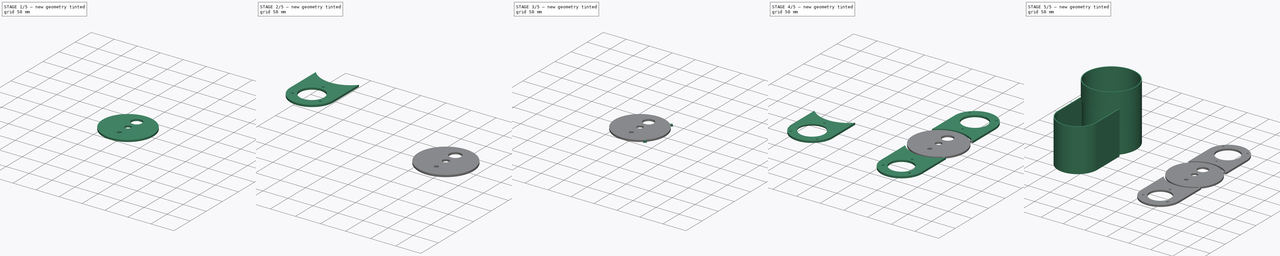
[diagram: build sequence overview — one tinted view per stage of 5, left to right]
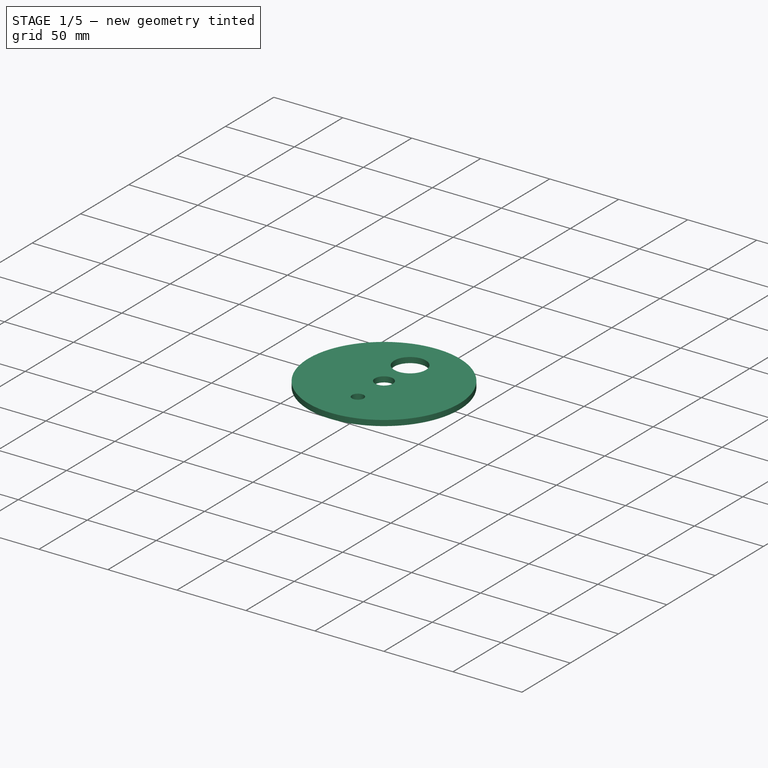
[diagram: stage 1 of 5 — iso view after this stage's code; geometry added in this stage tinted green]
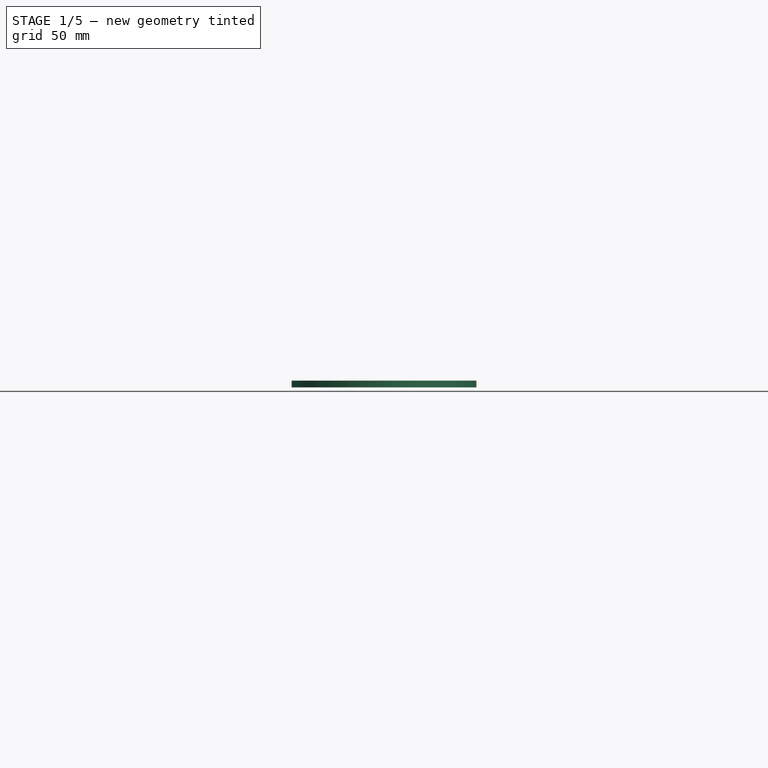
[diagram: stage 1 of 5 — front view after this stage's code; geometry added in this stage tinted green]
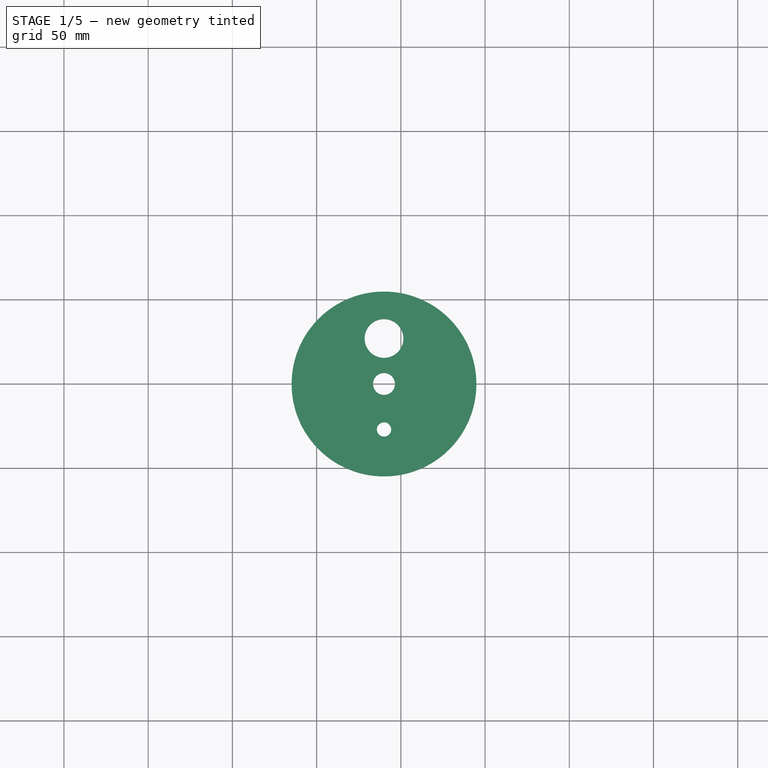
[diagram: stage 1 of 5 — top view after this stage's code; geometry added in this stage tinted green]
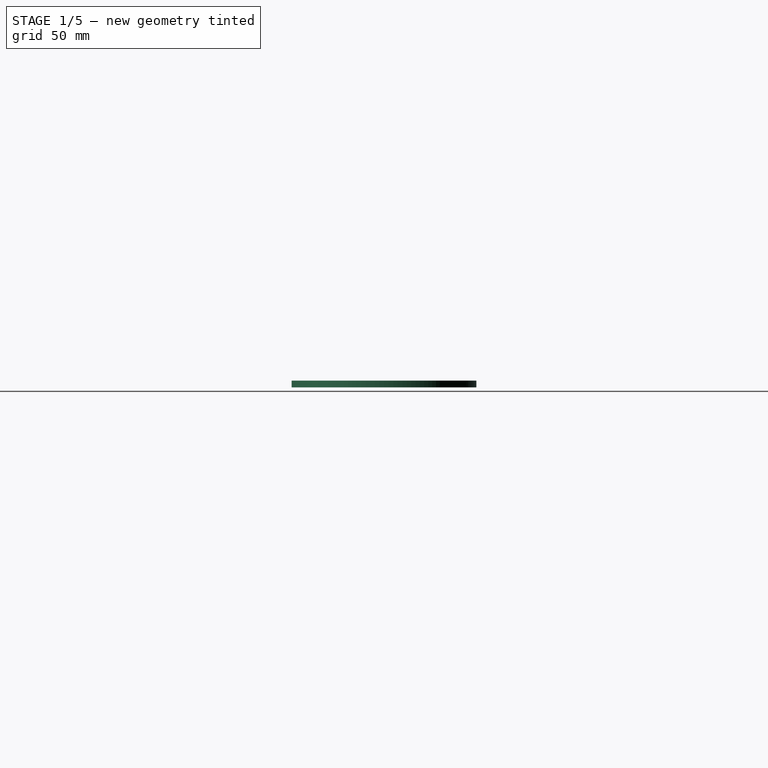
[diagram: stage 1 of 5 — right view after this stage's code; geometry added in this stage tinted green]
FCSTD DOCUMENT  (FreeCAD 0.21R33771 (Git))
Label: boiler
License: All rights reserved
LicenseURL: https://en.wikipedia.org/wiki/All_rights_reserved
objects: Part::Extrusion×8, Sketcher::SketchObject×6, Part::FeaturePython×3, Part::MultiFuse×2, Part::Chamfer×1, Part::Cut×1, Part::Fuse×1, TechDraw::DrawSVGTemplate×1, TechDraw::DrawViewPart×1, TechDraw::DrawPage×1
note: 22 computed .brp shape members not serialized (recipe doc carries the construction recipe); baked Part::Feature solids carry a one-line shape summary decoded from their .brp

FEATURE [Part::FeaturePython] Tube  label="TubeBig"  # WARN: FeaturePython — macro-defined, semantics opaque (R4)
  AttacherType = Attacher::AttachEngine3D
  Height = 130
  InnerRadius = 55.15
  OuterRadius = 57.15
  Placement = pos=(0,0,20) rot=(0,0,1;0rad)
  expr: .Placement.Base.z = <<BaseBig>>.Height
  expr: Height = 150 mm - <<BaseBig>>.Height
  expr: InnerRadius = OuterRadius - 2 mm
FEATURE [Part::FeaturePython] Tube002  label="BaseBig"  # WARN: FeaturePython — macro-defined, semantics opaque (R4)
  AttacherType = Attacher::AttachEngine3D
  Height = 20
  InnerRadius = 56
  OuterRadius = 60
  expr: OuterRadius = InnerRadius + 4 mm
FEATURE [Part::Extrusion] Extrude010  label="Cap001"
  Base = -> Sketch003
  Dir = (0,0,1)
  DirMode = 2
  FaceMakerClass = Part::FaceMakerBullseye
  LengthFwd = 4
  LengthRev = 0
  Placement = pos=(190,0,-150) rot=(0,0,1;0rad)
  Solid = true
  Symmetric = false
  expr: .Placement.Base.z = -<<BaseBig>>.Height - <<TubeBig>>.Height
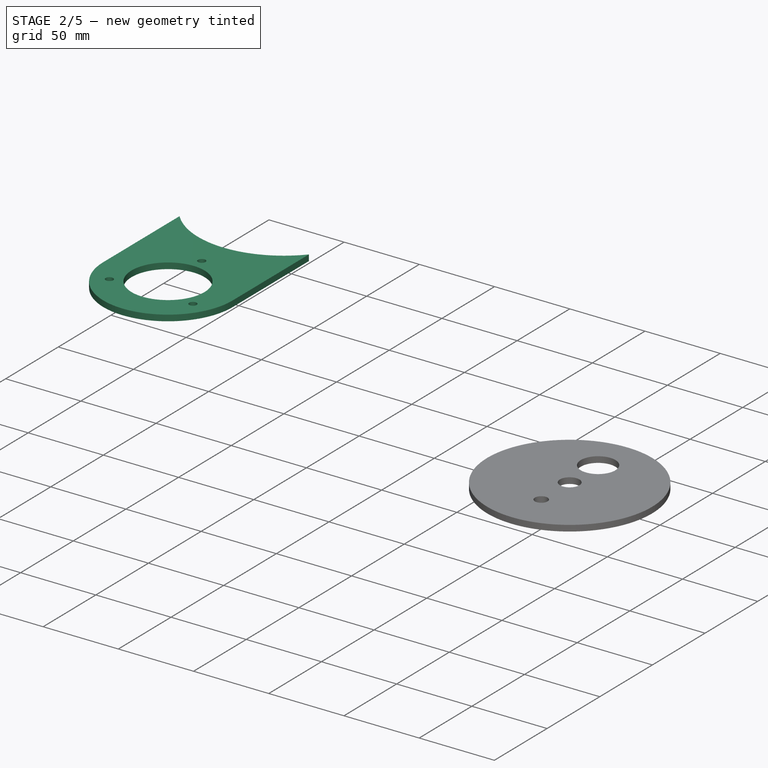
[diagram: stage 2 of 5 — iso view after this stage's code; geometry added in this stage tinted green]
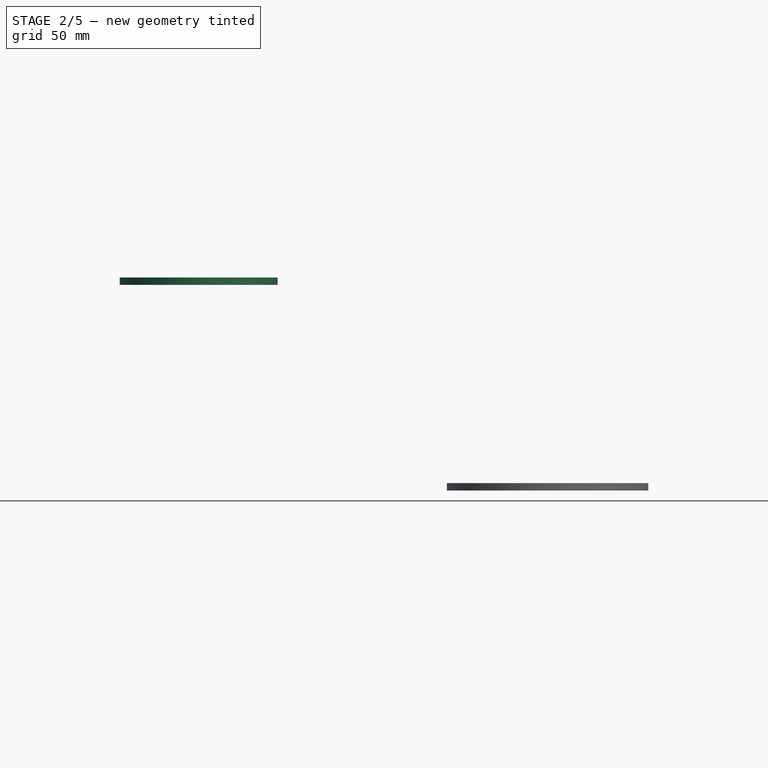
[diagram: stage 2 of 5 — front view after this stage's code; geometry added in this stage tinted green]
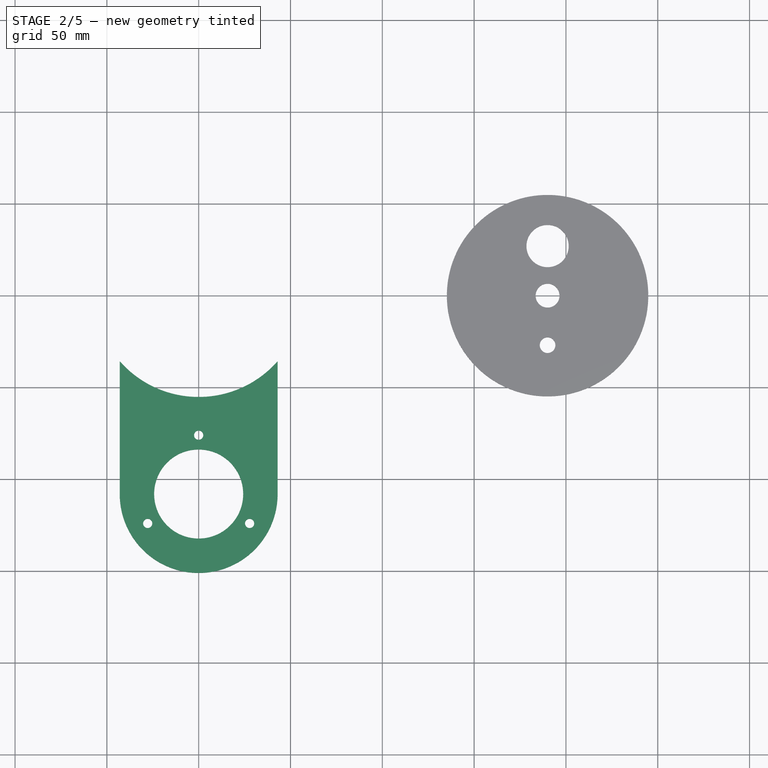
[diagram: stage 2 of 5 — top view after this stage's code; geometry added in this stage tinted green]
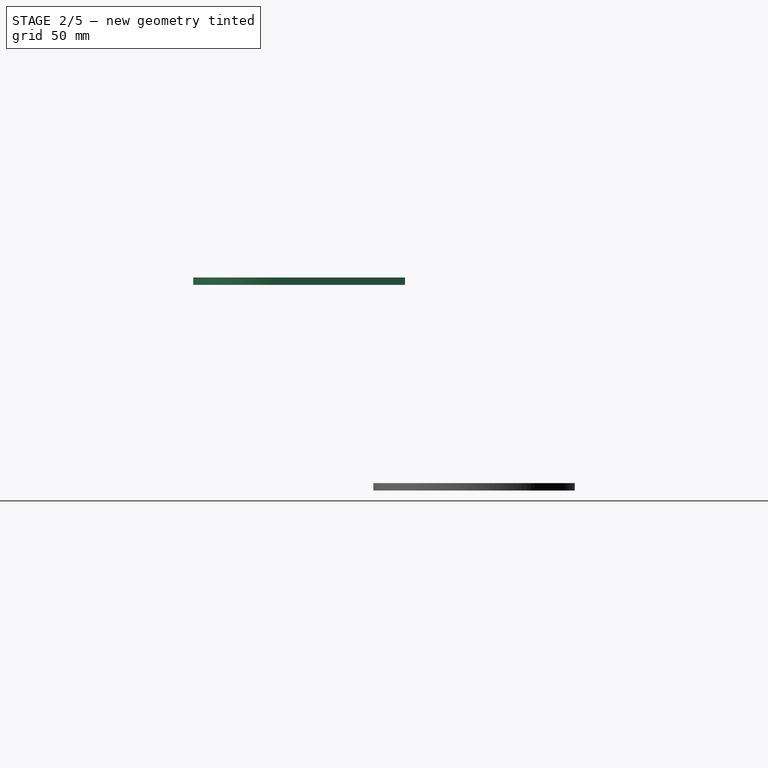
[diagram: stage 2 of 5 — right view after this stage's code; geometry added in this stage tinted green]
FEATURE [Sketcher::SketchObject] Sketch  label="ExtruderTopSketch"
  ExternalGeometry = -> [Tube]
  FullyConstrained = true
  sketch-geometry (11):
    g0: ArcOfCircle CenterX=0 CenterY=0 CenterZ=0 NormalX=0 NormalY=0 NormalZ=1 AngleXU=0 Radius=57.15 StartAngle=3.86068 EndAngle=5.5641
    g1: LineSegment StartX=-43 StartY=-37.6447 StartZ=0 EndX=-43 EndY=-110 EndZ=0
    g2: LineSegment StartX=43 StartY=-37.6447 StartZ=0 EndX=43 EndY=-110 EndZ=0
    g3: ArcOfCircle CenterX=0 CenterY=-110 CenterZ=0 NormalX=0 NormalY=0 NormalZ=1 AngleXU=0 Radius=43 StartAngle=3.14159 EndAngle=6.28319
    g4: Circle CenterX=0 CenterY=-110 CenterZ=0 NormalX=0 NormalY=0 NormalZ=1 AngleXU=0 Radius=24.25
    g5: Circle CenterX=0 CenterY=-77.9571 CenterZ=0 NormalX=0 NormalY=0 NormalZ=1 AngleXU=0 Radius=2.5
    g6: Circle CenterX=-27.75 CenterY=-126.021 CenterZ=0 NormalX=0 NormalY=0 NormalZ=1 AngleXU=0 Radius=2.5
    g7: Circle CenterX=27.75 CenterY=-126.021 CenterZ=0 NormalX=0 NormalY=0 NormalZ=1 AngleXU=0 Radius=2.5
    g8: LineSegment StartX=0 StartY=-77.9571 StartZ=0 EndX=0 EndY=-110 EndZ=0
    g9: LineSegment StartX=0 StartY=-110 StartZ=0 EndX=-27.75 EndY=-126.021 EndZ=0
    g10: LineSegment StartX=0 StartY=-110 StartZ=0 EndX=27.75 EndY=-126.021 EndZ=0
  constraints (27):
    c: Coincident(g0,g-3)
    c: PointOnObject(g0,g-3)
    c: Coincident(g1,g0)
    c: Vertical(g1)
    c: Coincident(g2,g0)
    c: Vertical(g2)
    c: PointOnObject(g3,g-2)
    c: Tangent(g3,g2) = 1.5708
    c: Tangent(g3,g1) = -1.5708
    c: Coincident(g4,g3)
    c: DistanceY(g3,g0) = 110  'Distance'
    c: Equal(g5,g6)
    c: Equal(g5,g7)
    c: Diameter(g5) = 5
    c: Coincident(g8,g5)
    c: Coincident(g8,g3)
    c: Coincident(g9,g3)
    c: Coincident(g9,g6)
    c: Coincident(g10,g3)
    c: Coincident(g10,g7)
    c: Equal(g8,g9)
    c: Angle(g10,g8) = 2.0944
    c: PointOnObject(g5,g-2)
    c: DistanceX(g1,g2) = 86  'Width'
    c: Diameter(g4) = 48.5
    c: Distance(g5,g7) = 55.5
    c: Symmetric(g7,g6,g-2)
FEATURE [Part::Extrusion] Extrude  label="ExtruderTop"
  Base = -> Sketch
  Dir = (0,0,1)
  DirMode = 2
  FaceMakerClass = Part::FaceMakerBullseye
  LengthFwd = 4
  LengthRev = 0
  Placement = pos=(0,0,112) rot=(0,0,1;0rad)
  Solid = true
  Symmetric = false
  expr: .Placement.Base.z = <<ExtruderBottom>>.Placement.Base.z - LengthFwd + 100 mm
FEATURE [Sketcher::SketchObject] Sketch001  label="ExtruderBottomSketch"
  FullyConstrained = true
  expr: Constraints[25] = <<BaseBig>>.OuterRadius
  expr: Constraints[7] = Sketch.Constraints.Distance
  expr: Constraints[8] = Sketch.Constraints.Width
  sketch-geometry (11):
    g0: ArcOfCircle CenterX=0 CenterY=0 CenterZ=0 NormalX=0 NormalY=0 NormalZ=1 AngleXU=0 Radius=60 StartAngle=3.91338 EndAngle=5.5114
    g1: LineSegment StartX=-43 StartY=-41.845 StartZ=0 EndX=-43 EndY=-110 EndZ=0
    g2: LineSegment StartX=43 StartY=-41.845 StartZ=0 EndX=43 EndY=-110 EndZ=0
    g3: ArcOfCircle CenterX=0 CenterY=-110 CenterZ=0 NormalX=0 NormalY=0 NormalZ=1 AngleXU=0 Radius=43 StartAngle=3.14159 EndAngle=6.28319
    g4: Circle CenterX=0 CenterY=-110 CenterZ=0 NormalX=0 NormalY=0 NormalZ=1 AngleXU=0 Radius=26
    g5: Circle CenterX=0 CenterY=-72.9425 CenterZ=0 NormalX=0 NormalY=0 NormalZ=1 AngleXU=0 Radius=2.1
    g6: Circle CenterX=27.875 CenterY=-134.418 CenterZ=0 NormalX=0 NormalY=0 NormalZ=1 AngleXU=0 Radius=2.1
    g7: Circle CenterX=-27.875 CenterY=-134.418 CenterZ=0 NormalX=0 NormalY=0 NormalZ=1 AngleXU=0 Radius=2.1
    g8: LineSegment StartX=0 StartY=-110 StartZ=0 EndX=0 EndY=-72.9425 EndZ=0
    g9: LineSegment StartX=0 StartY=-110 StartZ=0 EndX=-27.875 EndY=-134.418 EndZ=0
    g10: LineSegment StartX=0 StartY=-110 StartZ=0 EndX=27.875 EndY=-134.418 EndZ=0
  constraints (27):
    c: Coincident(g1,g0)
    c: Vertical(g1)
    c: Coincident(g2,g0)
    c: Vertical(g2)
    c: PointOnObject(g3,g-2)
    c: Tangent(g3,g2) = 1.5708
    c: Tangent(g3,g1) = -1.5708
    c: DistanceY(g3,g0) = 110
    c: DistanceX(g1,g2) = 86
    c: Coincident(g4,g3)
    c: Diameter(g4) = 52
    c: Equal(g5,g7)
    c: Equal(g7,g6)
    c: Coincident(g8,g3)
    c: Coincident(g8,g5)
    c: Coincident(g9,g3)
    c: Coincident(g9,g7)
    c: Coincident(g10,g3)
    c: Coincident(g10,g6)
    c: Equal(g8,g10)
    c: Diameter(g5) = 4.2
    c: PointOnObject(g5,g-2)
    c: Symmetric(g7,g6,g-2)
    c: DistanceX(g7,g6) = 55.75
    c: Distance(g5,g6) = 67.5
    c: Radius(g0) = 60
    c: Coincident(g0,g-1)
FEATURE [Part::Extrusion] Extrude001  label="ExtruderBottom"
  Base = -> Sketch001
  Dir = (0,0,1)
  DirMode = 2
  FaceMakerClass = Part::FaceMakerBullseye
  LengthFwd = 4
  LengthRev = 0
  Placement = pos=(0,0,16) rot=(0,0,1;0rad)
  Solid = true
  Symmetric = false
  expr: .Placement.Base.z = <<BaseBig>>.Height - LengthFwd
  expr: LengthFwd = <<Cap>>.LengthFwd
FEATURE [Sketcher::SketchObject] Sketch003
  ExternalGeometry = -> [Tube]
  FullyConstrained = true
  MapMode = 5
  Placement = pos=(0,0,150) rot=(0,0,1;0rad)
  Support = -> [Tube]
  expr: Constraints[2] = .Constraints.InnerDiameterBoiler - 0.6 mm
  sketch-geometry (4):
    g0: Circle CenterX=0 CenterY=0 CenterZ=0 NormalX=0 NormalY=0 NormalZ=1 AngleXU=0 Radius=54.85
    g1: Circle CenterX=0 CenterY=27 CenterZ=0 NormalX=0 NormalY=0 NormalZ=1 AngleXU=0 Radius=11.5
    g2: Circle CenterX=0 CenterY=0 CenterZ=0 NormalX=0 NormalY=0 NormalZ=1 AngleXU=0 Radius=6.5
    g3: Circle CenterX=0 CenterY=-27 CenterZ=0 NormalX=0 NormalY=0 NormalZ=1 AngleXU=0 Radius=4.25
  constraints (11):
    c: Coincident(g0,g-1)
    c: Diameter(g-3) = 110.3  'InnerDiameterBoiler'
    c: Diameter(g0) = 109.7
    c: PointOnObject(g1,g-2)
    c: Coincident(g2,g0)
    c: PointOnObject(g3,g-2)
    c: Diameter(g1) = 23
    c: Diameter(g2) = 13
    c: Diameter(g3) = 8.5
    c: DistanceY(g3,g0) = 27
    c: DistanceY(g0,g1) = 27
FEATURE [Part::Extrusion] Extrude002  label="Cap"
  Base = -> Sketch003
  Dir = (0,0,1)
  DirMode = 2
  FaceMakerClass = Part::FaceMakerBullseye
  LengthFwd = 4
  LengthRev = 0
  Placement = pos=(0,0,-3) rot=(0,0,1;0rad)
  Solid = true
  Symmetric = false
  expr: .Placement.Base.z = -LengthFwd + 1 mm
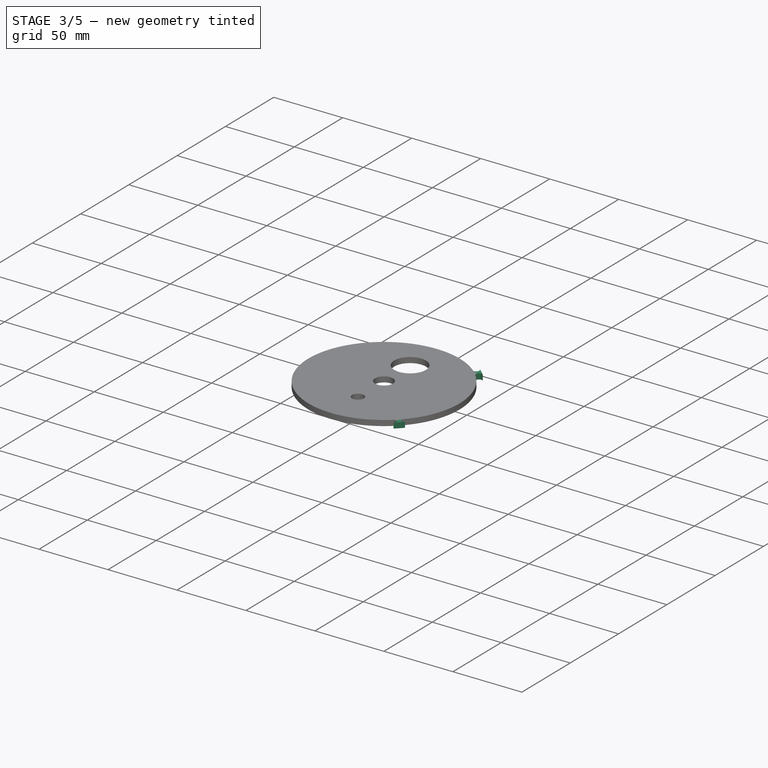
[diagram: stage 3 of 5 — iso view after this stage's code; geometry added in this stage tinted green]
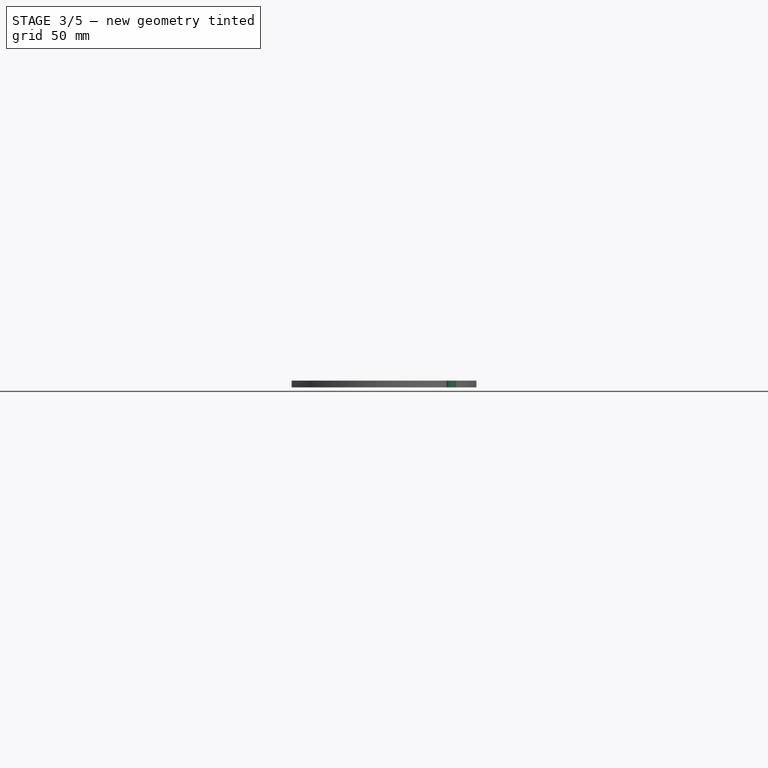
[diagram: stage 3 of 5 — front view after this stage's code; geometry added in this stage tinted green]
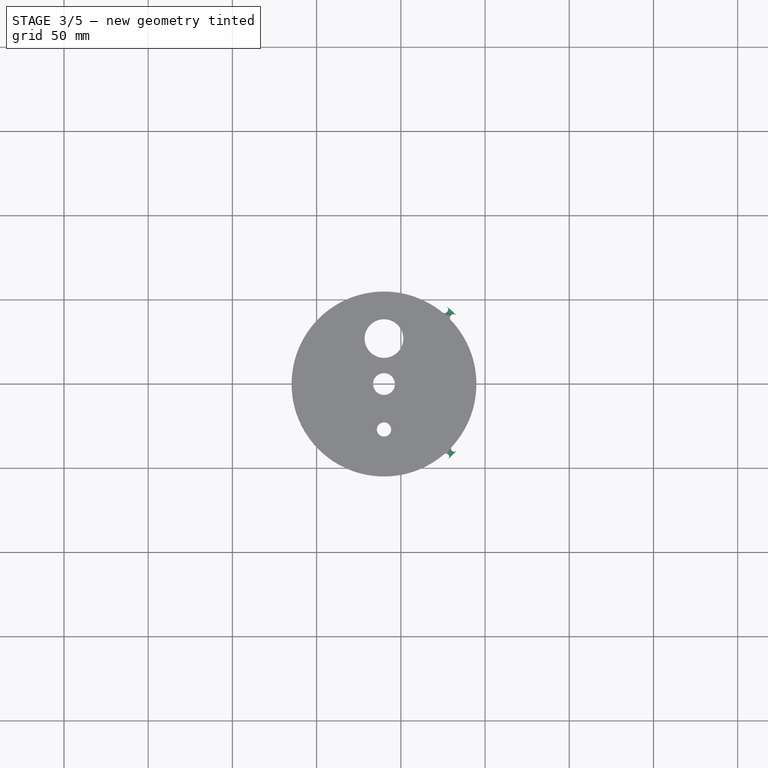
[diagram: stage 3 of 5 — top view after this stage's code; geometry added in this stage tinted green]
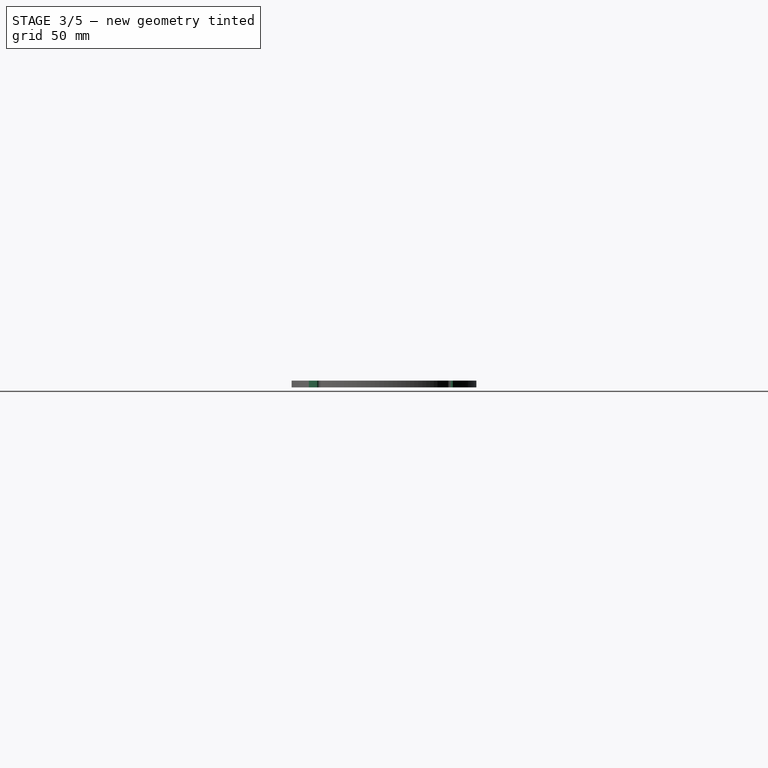
[diagram: stage 3 of 5 — right view after this stage's code; geometry added in this stage tinted green]
FEATURE [Part::Extrusion] Extrude007  label="ExtruderBottom001"
  Base = -> Sketch001
  Dir = (0,0,1)
  DirMode = 2
  FaceMakerClass = Part::FaceMakerBullseye
  LengthFwd = 4
  LengthRev = 0
  Placement = pos=(190,-1,0) rot=(0,0,1;3.14159rad)
  Solid = true
  Symmetric = false
  expr: LengthFwd = <<ExtruderTop>>.LengthFwd
FEATURE [Part::Extrusion] Extrude008  label="ExtruderTop001"
  Base = -> Sketch
  Dir = (0,0,1)
  DirMode = 2
  FaceMakerClass = Part::FaceMakerBullseye
  LengthFwd = 4
  LengthRev = 0
  Placement = pos=(190,-2,0) rot=(0,0,1;0rad)
  Solid = true
  Symmetric = false
  expr: LengthFwd = <<ExtruderTop>>.LengthFwd
FEATURE [Sketcher::SketchObject] Sketch005
  ExternalGeometry = -> [Extrude010,Extrude007,Extrude008]
  FullyConstrained = true
  sketch-geometry (10):
    g0: ArcOfCircle CenterX=231.403 CenterY=39.2907 CenterZ=0 NormalX=0 NormalY=0 NormalZ=1 AngleXU=0 Radius=2.22854 StartAngle=0.771785 EndAngle=3.90082
    g1: ArcOfCircle CenterX=225.932 CenterY=44.2934 CenterZ=0 NormalX=0 NormalY=0 NormalZ=1 AngleXU=0 Radius=2.18498 StartAngle=4.03084 EndAngle=7.18333
    g2: ArcOfCircle CenterX=231.632 CenterY=-38.4467 CenterZ=0 NormalX=0 NormalY=0 NormalZ=1 AngleXU=0 Radius=1.81869 StartAngle=2.39595 EndAngle=5.5641
    g3: ArcOfCircle CenterX=226.845 CenterY=-43.1661 CenterZ=0 NormalX=0 NormalY=0 NormalZ=1 AngleXU=0 Radius=1.90297 StartAngle=5.44246 EndAngle=8.56055
    g4: ArcOfCircle CenterX=190 CenterY=0 CenterZ=0 NormalX=0 NormalY=0 NormalZ=1 AngleXU=0 Radius=54.85 StartAngle=5.41895 EndAngle=5.53754
    g5: ArcOfCircle CenterX=190 CenterY=-2 CenterZ=0 NormalX=0 NormalY=0 NormalZ=1 AngleXU=0 Radius=57.15 StartAngle=5.44246 EndAngle=5.5641
    g6: ArcOfCircle CenterX=190 CenterY=0 CenterZ=0 NormalX=0 NormalY=0 NormalZ=1 AngleXU=0 Radius=54.85 StartAngle=0.759229 EndAngle=0.889251
    g7: ArcOfCircle CenterX=190 CenterY=-1 CenterZ=0 NormalX=0 NormalY=0 NormalZ=1 AngleXU=0 Radius=60 StartAngle=0.771785 EndAngle=0.900148
    g8: LineSegment StartX=227.544 StartY=42.8189 StartZ=0 EndX=229.758 EndY=40.7946 EndZ=0
    g9: LineSegment StartX=230.337 StartY=-39.7237 StartZ=0 EndX=228.2 EndY=-41.83 EndZ=0
  constraints (28):
    c: Coincident(g4,g-3)
    c: PointOnObject(g4,g-3)
    c: Coincident(g5,g-5)
    c: Coincident(g6,g4)
    c: PointOnObject(g6,g-3)
    c: Coincident(g7,g-4)
    c: Coincident(g7,g-4)
    c: Tangent(g0,g7) = -1.5708
    c: Tangent(g0,g6) = 1.5708
    c: Tangent(g1,g6) = 1.5708
    c: Tangent(g1,g7) = -1.5708
    c: Tangent(g2,g5) = -1.5708
    c: Tangent(g2,g4) = 1.5708
    c: Tangent(g3,g4) = 1.5708
    c: Tangent(g3,g5) = -1.5708
    c: Coincident(g2,g-5)
    c: PointOnObject(g8,g1)
    c: PointOnObject(g8,g0)
    c: Perpendicular(g1,g8)
    c: Perpendicular(g0,g8)
    c: Distance(g8) = 3
    c: Distance(g1,g1) = 4.3699
    c: PointOnObject(g9,g2)
    c: PointOnObject(g9,g3)
    c: Perpendicular(g3,g9)
    c: Perpendicular(g2,g9)
    c: Equal(g9,g8)
    c: Distance(g3,g3) = 3.80567
FEATURE [Part::Extrusion] Extrude011
  Base = -> Sketch005
  Dir = (0,0,1)
  DirMode = 2
  FaceMakerClass = Part::FaceMakerBullseye
  LengthFwd = 4
  LengthRev = 0
  Solid = true
  Symmetric = false
  expr: LengthFwd = <<ExtruderTop>>.LengthFwd
FEATURE [Part::MultiFuse] Fusion
  Shapes = -> [Extrude011,Extrude010]
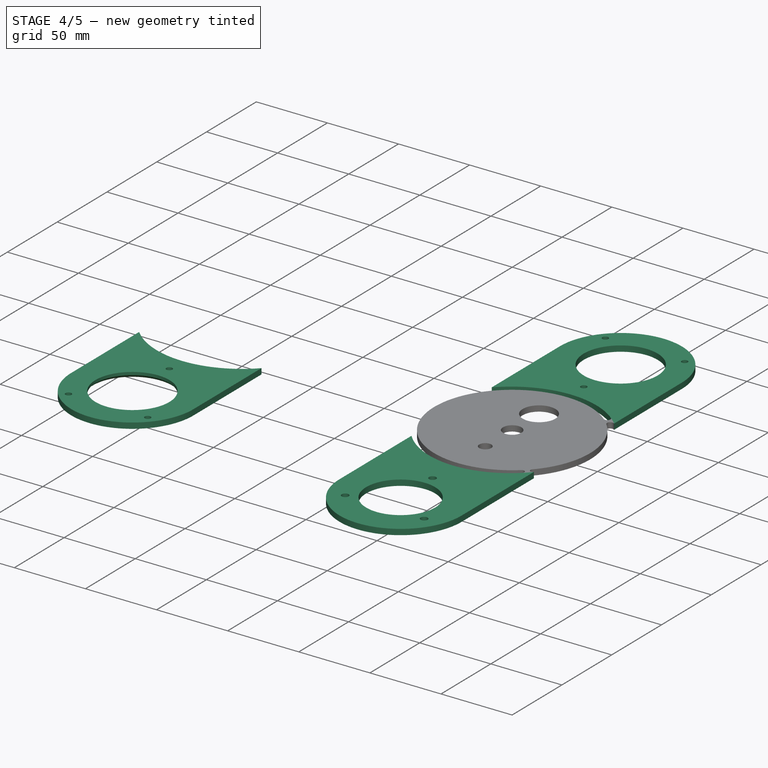
[diagram: stage 4 of 5 — iso view after this stage's code; geometry added in this stage tinted green]
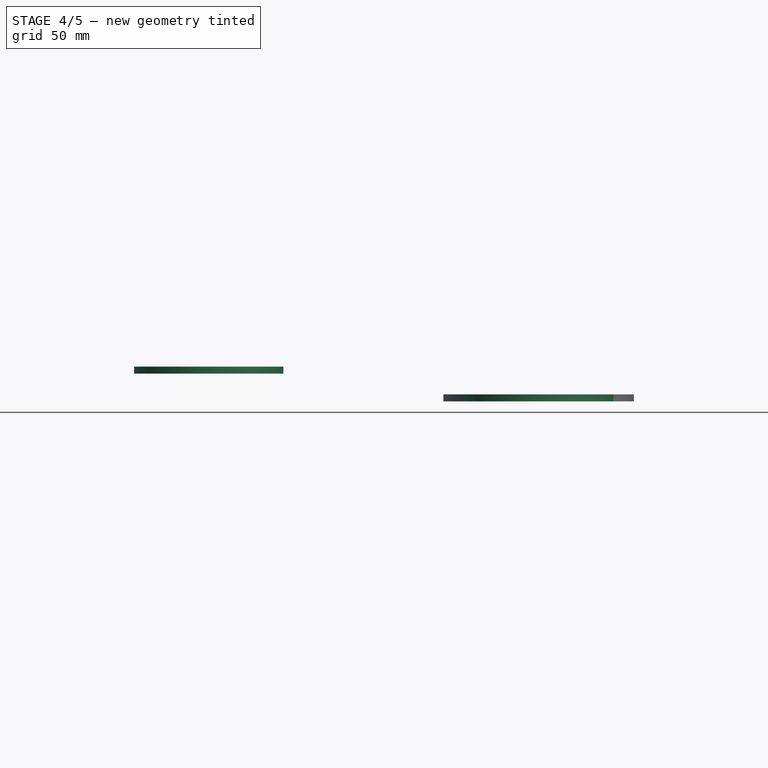
[diagram: stage 4 of 5 — front view after this stage's code; geometry added in this stage tinted green]
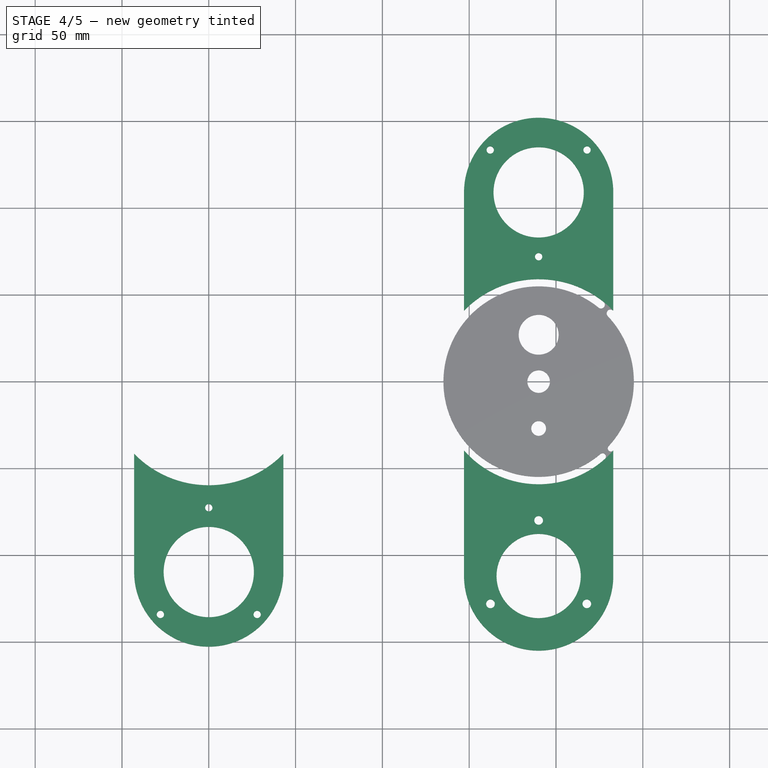
[diagram: stage 4 of 5 — top view after this stage's code; geometry added in this stage tinted green]
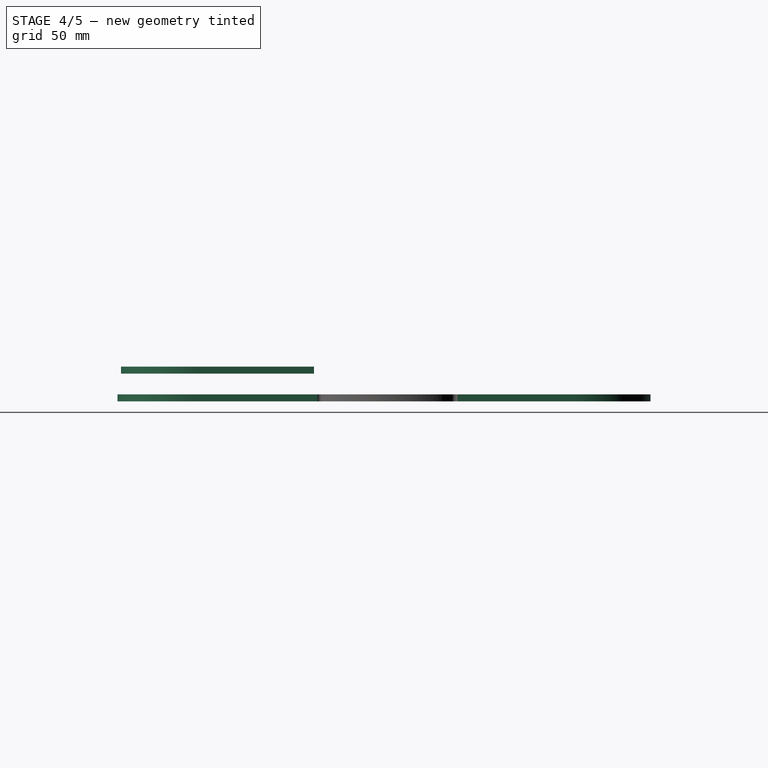
[diagram: stage 4 of 5 — right view after this stage's code; geometry added in this stage tinted green]
FEATURE [Part::Chamfer] Chamfer
  Base = -> Extrude001
  Edges = 1 edges r=2: [Edge14]
FEATURE [Part::MultiFuse] Fusion001
  Shapes = -> [Extrude008,Fusion]
FEATURE [Part::Fuse] Fusion002
  Base = -> Extrude007
  Tool = -> Fusion001
FEATURE [TechDraw::DrawSVGTemplate] Template
  Height = 297
  Orientation = 0
  Template = <path>
  Width = 210
FEATURE [TechDraw::DrawViewPart] View
  CoarseView = false
  Direction = (0,0,1)
  Focus = 100
  HardHidden = false
  IsoCount = 0
  IsoHidden = false
  IsoVisible = false
  LockPosition = false
  Perspective = false
  Rotation = 0
  ScaleType = 0
  ScrubCount = 0
  SeamHidden = false
  SeamVisible = false
  SmoothHidden = false
  SmoothVisible = true
  Source = -> [Fusion002]
  X = 105
  XDirection = (1,0,0)
  Y = 148.5
FEATURE [TechDraw::DrawPage] Page
  KeepUpdated = true
  NextBalloonIndex = 1
  ProjectionType = 0
  Template = -> Template
  Views = -> [View]
note: 1 file-system path scrubbed to <path> (originals preserved in the JSON sidecar)
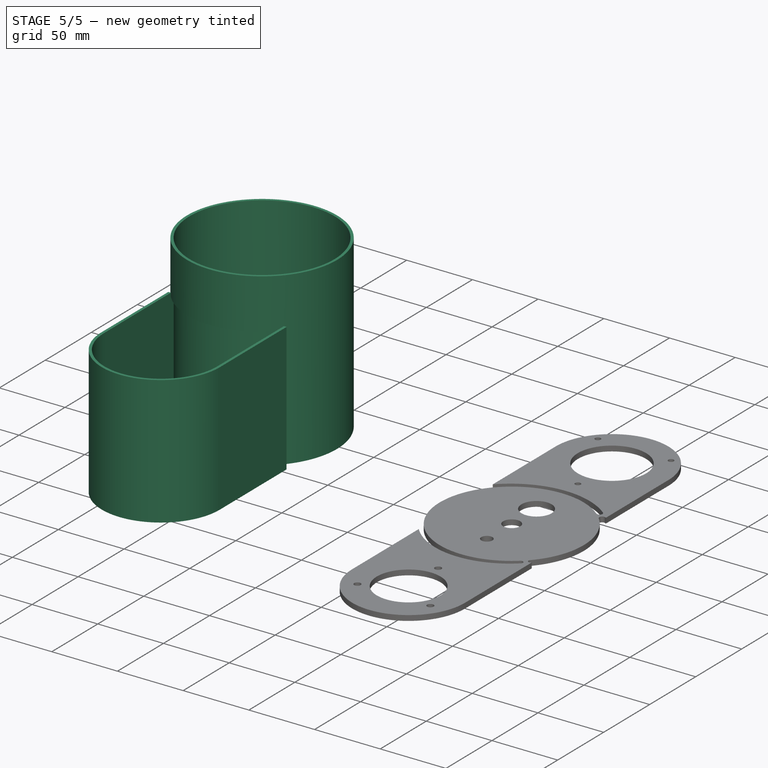
[diagram: stage 5 of 5 — iso view after this stage's code; geometry added in this stage tinted green]
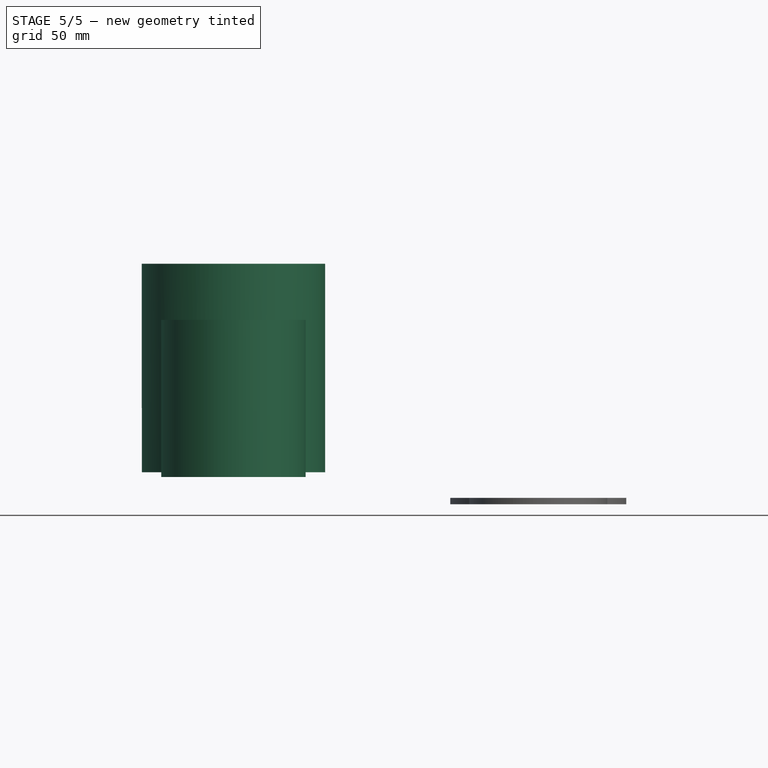
[diagram: stage 5 of 5 — front view after this stage's code; geometry added in this stage tinted green]
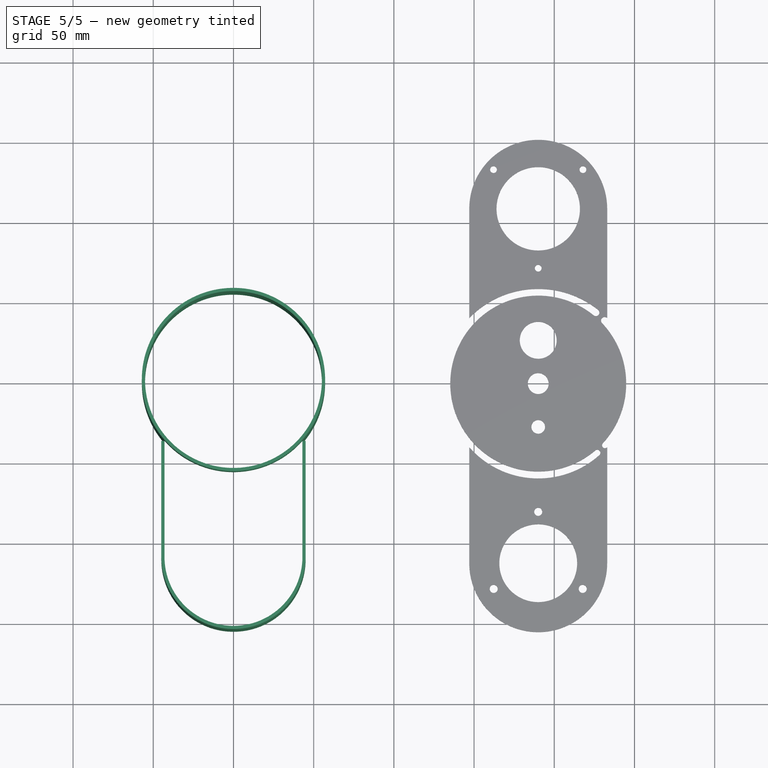
[diagram: stage 5 of 5 — top view after this stage's code; geometry added in this stage tinted green]
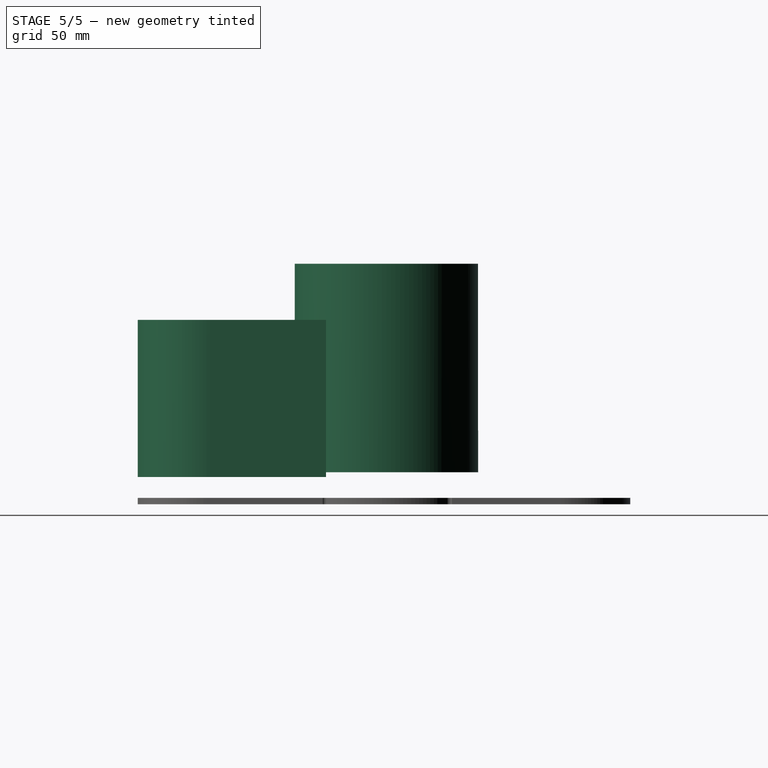
[diagram: stage 5 of 5 — right view after this stage's code; geometry added in this stage tinted green]
FEATURE [Sketcher::SketchObject] Sketch002
  ExternalGeometry = -> [Extrude]
  FullyConstrained = true
  MapMode = 5
  Placement = pos=(0,0,116) rot=(0,0,1;0rad)
  Support = -> [Extrude]
  sketch-geometry (3):
    g0: LineSegment StartX=-43 StartY=-37.6447 StartZ=0 EndX=-43 EndY=-110 EndZ=0
    g1: ArcOfCircle CenterX=-1.9e-15 CenterY=-110 CenterZ=0 NormalX=0 NormalY=0 NormalZ=1 AngleXU=0 Radius=43 StartAngle=3.14159 EndAngle=6.28319
    g2: LineSegment StartX=43 StartY=-37.6447 StartZ=0 EndX=43 EndY=-110 EndZ=0
  constraints (6):
    c: Tangent(g1,g2) = 1.5708
    c: Coincident(g2,g-5)
    c: Coincident(g1,g-5)
    c: Tangent(g0,g1) = -1.5708
    c: Coincident(g0,g-4)
    c: Equal(g0,g-3)
FEATURE [Part::FeaturePython] BaseBend  # WARN: FeaturePython — macro-defined, semantics opaque (R4)
  BendSide = 0
  BendSketch = -> Sketch002
  MidPlane = false
  Placement = pos=(0,0,-1) rot=(0,0,1;0rad)
  Reverse = true
  length = 98
  radius = 1
  thickness = 2
  expr: length = <<ExtruderTop>>.Placement.Base.z - <<ExtruderBottom>>.Placement.Base.z + <<ExtruderBottom>>.LengthFwd - 2 mm
FEATURE [Sketcher::SketchObject] Sketch004
  ExternalGeometry = -> [Extrude,Chamfer]
  FullyConstrained = true
  Placement = pos=(0,0,0) rot=(1,0,0;1.5708rad)
  sketch-geometry (4):
    g0: LineSegment StartX=-43 StartY=112 StartZ=0 EndX=43 EndY=112 EndZ=0
    g1: LineSegment StartX=43 StartY=112 StartZ=0 EndX=43 EndY=20 EndZ=0
    g2: LineSegment StartX=43 StartY=20 StartZ=0 EndX=-43 EndY=20 EndZ=0
    g3: LineSegment StartX=-43 StartY=112 StartZ=0 EndX=-43 EndY=20 EndZ=0
  constraints (8):
    c: Coincident(g0,g-3)
    c: Coincident(g0,g-3)
    c: Coincident(g1,g0)
    c: Coincident(g1,g-4)
    c: Coincident(g2,g1)
    c: Coincident(g2,g-4)
    c: Coincident(g3,g0)
    c: Coincident(g3,g2)
FEATURE [Part::Extrusion] Extrude005  label="HoleBoiler"
  Base = -> Sketch004
  Dir = (0,68.155,0)
  DirLink = -> Chamfer [Edge7]
  DirMode = 1
  FaceMakerClass = Part::FaceMakerBullseye
  LengthFwd = 0
  LengthRev = 0
  Reversed = true
  Solid = true
  Symmetric = false
FEATURE [Part::Cut] Cut
  Base = -> Tube
  Tool = -> Extrude005
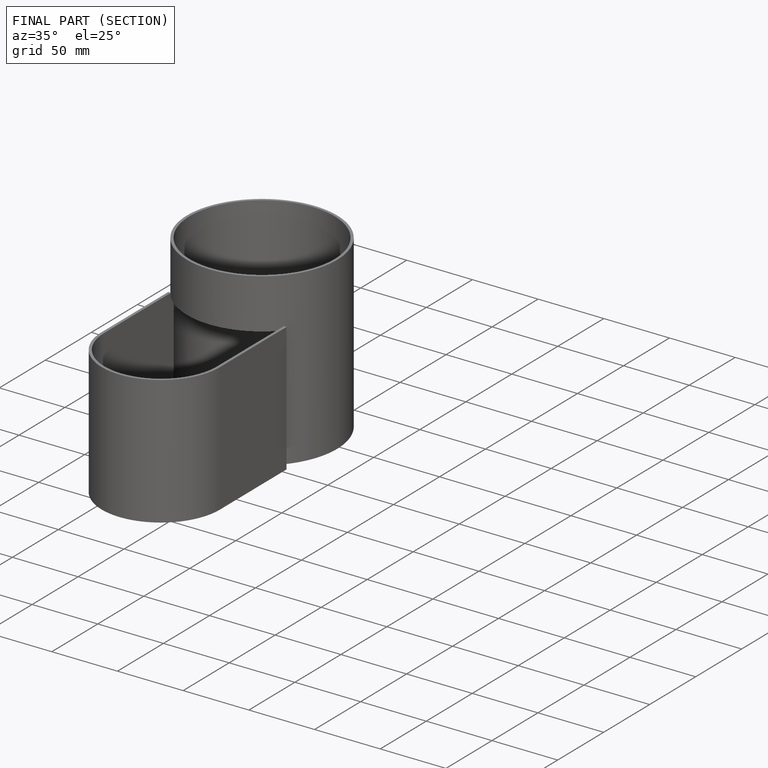
[diagram: finished part — half-section view (interior)]
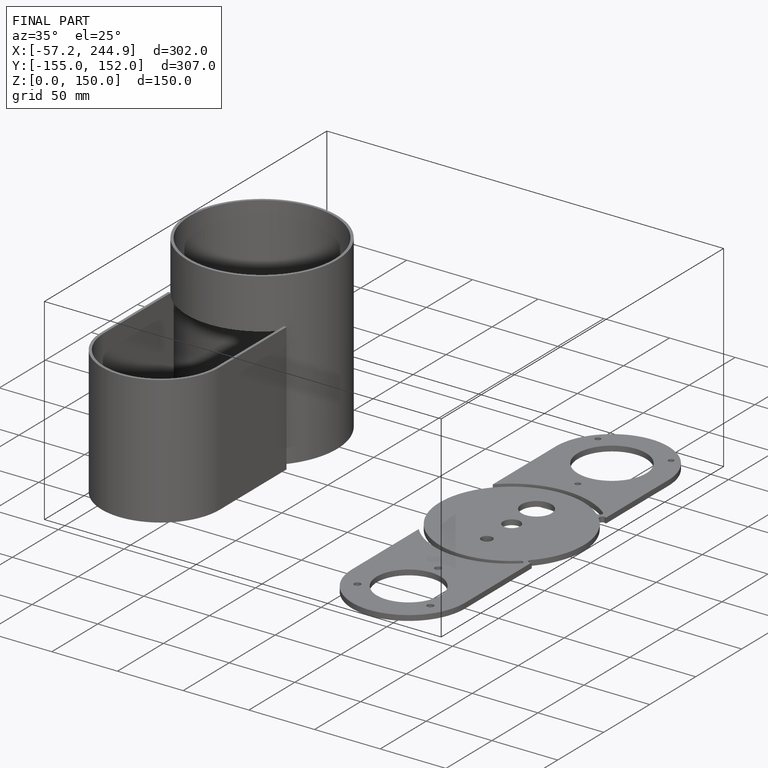
[diagram: finished part — iso view with bounding-box wireframe]
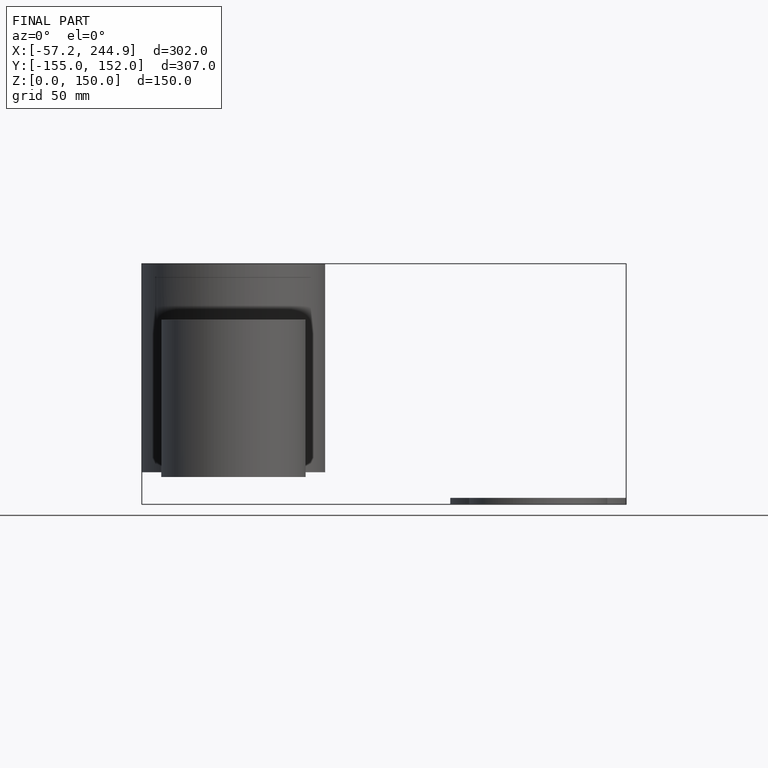
[diagram: finished part — front view with bounding-box wireframe]
